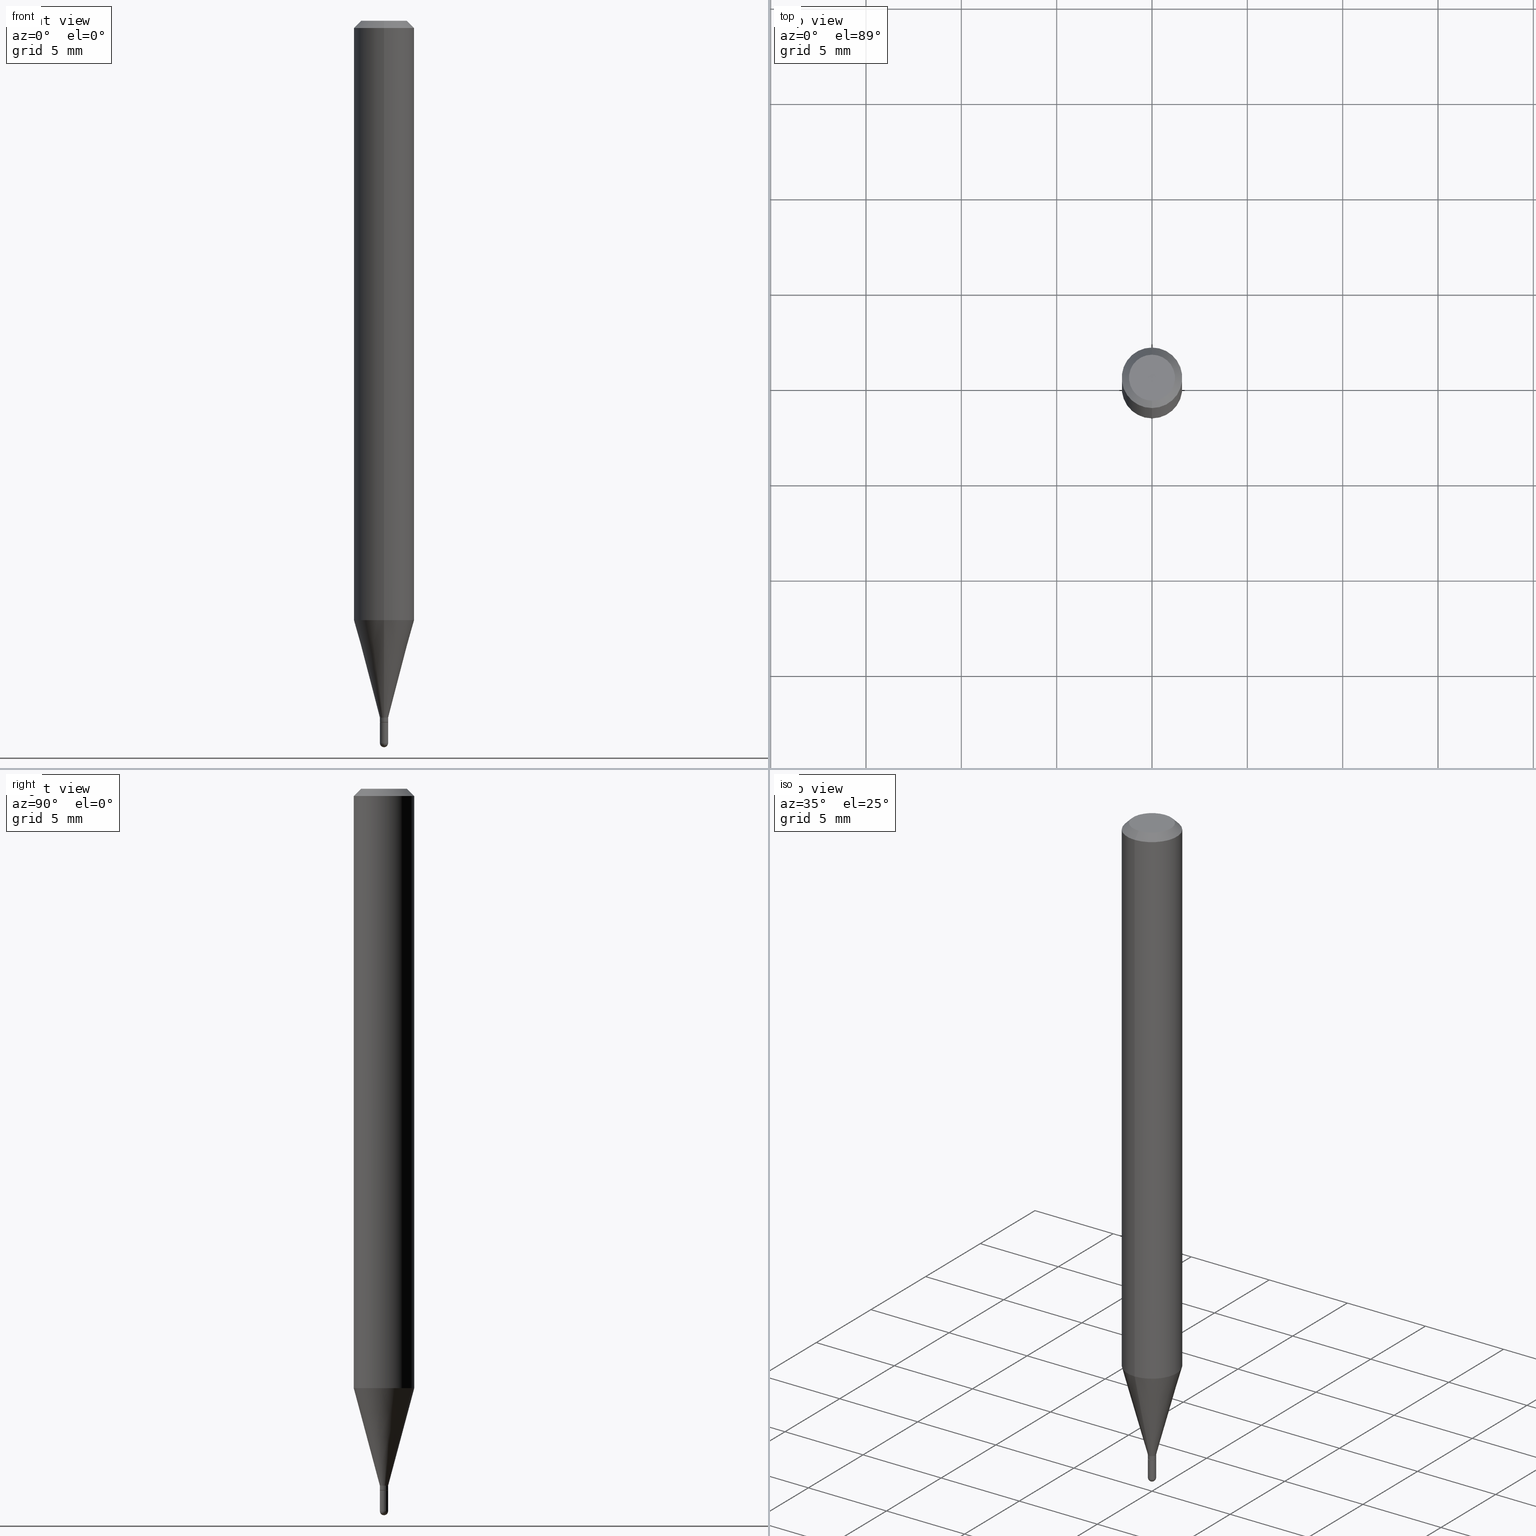
[diagram: canonical four-view strip — front | top / right | iso, engineering-drawing reading convention]
A machine part, canonical four-view strip (front | top / right | iso — engineering-drawing reading convention). The complete STEP part file that produces these views, byte-faithful:
ISO-10303-21;
HEADER;
FILE_DESCRIPTION (( 'STEP AP203' ),
    '1' );
FILE_NAME ('03152.STEP',
    '2024-03-08T18:22:03',
    ( '' ),
    ( '' ),
    'SwSTEP 2.0',
    'SolidWorks 2023',
    '' );
FILE_SCHEMA (( 'CONFIG_CONTROL_DESIGN' ));
ENDSEC;

DATA;
#1 = FACE_OUTER_BOUND ( 'NONE', #250, .T. ) ;
#2 = CALENDAR_DATE ( 2024, 8, 3 ) ;
#3 = EDGE_CURVE ( 'NONE', #295, #262, #270, .T. ) ;
#4 = VECTOR ( 'NONE', #246, 39.37007874015748854 ) ;
#5 = DIRECTION ( 'NONE',  ( 1.000000000000000000, -6.982962677686273021E-15, 0.000000000000000000 ) ) ;
#6 = DATE_TIME_ROLE ( 'classification_date' ) ;
#7 = CALENDAR_DATE ( 2024, 8, 3 ) ;
#8 = ADVANCED_FACE ( 'NONE', ( #176 ), #100, .T. ) ;
#9 = CYLINDRICAL_SURFACE ( 'NONE', #442, 0.008499999999999924283 ) ;
#10 = ORIENTED_EDGE ( 'NONE', *, *, #346, .F. ) ;
#11 = AXIS2_PLACEMENT_3D ( 'NONE', #419, #53, #213 ) ;
#12 = AXIS2_PLACEMENT_3D ( 'NONE', #311, #116, #273 ) ;
#13 = CARTESIAN_POINT ( 'NONE',  ( -4.364351673553912750E-16, -0.06250000000000005551, -0.01499999999999954321 ) ) ;
#14 = EDGE_LOOP ( 'NONE', ( #289, #260, #386, #105 ) ) ;
#15 = ORIENTED_EDGE ( 'NONE', *, *, #340, .F. ) ;
#16 = EDGE_CURVE ( 'NONE', #423, #259, #155, .T. ) ;
#17 = DIRECTION ( 'NONE',  ( 1.000000000000000000, -6.982962677686274599E-15, 0.000000000000000000 ) ) ;
#18 = ORIENTED_EDGE ( 'NONE', *, *, #491, .T. ) ;
#19 = DIRECTION ( 'NONE',  ( -2.445462151224155023E-29, 3.491490869126048320E-15, 1.000000000000000000 ) ) ;
#20 = LINE ( 'NONE', #383, #4 ) ;
#21 = CARTESIAN_POINT ( 'NONE',  ( 3.316907271900976096E-16, 0.04749999999999999362, -4.610126859532487999E-17 ) ) ;
#22 = VERTEX_POINT ( 'NONE', #190 ) ;
#23 = ORIENTED_EDGE ( 'NONE', *, *, #346, .T. ) ;
#24 = CIRCLE ( 'NONE', #148, 0.008499999999999924283 ) ;
#25 = CC_DESIGN_APPROVAL ( #75, ( #452 ) ) ;
#26 = ORIENTED_EDGE ( 'NONE', *, *, #310, .T. ) ;
#27 = DIRECTION ( 'NONE',  ( 1.000000000000000000, -6.982962677686265922E-15, 4.876176775795935232E-29 ) ) ;
#28 = CC_DESIGN_PERSON_AND_ORGANIZATION_ASSIGNMENT ( #200, #276, ( #219 ) ) ;
#29 = FACE_OUTER_BOUND ( 'NONE', #292, .T. ) ;
#30 = ADVANCED_FACE ( 'NONE', ( #356 ), #60, .T. ) ;
#31 = DIRECTION ( 'NONE',  ( -6.982962677686265922E-15, -1.000000000000000000, 0.000000000000000000 ) ) ;
#32 = CIRCLE ( 'NONE', #198, 0.008500000000000002345 ) ;
#33 = CARTESIAN_POINT ( 'NONE',  ( 0.000000000000000000, 0.000000000000000000, 0.000000000000000000 ) ) ;
#34 = AXIS2_PLACEMENT_3D ( 'NONE', #328, #438, #365 ) ;
#35 = PRODUCT_DEFINITION_SHAPE ( 'NONE', 'NONE',  #301 ) ;
#36 = PERSON_AND_ORGANIZATION_ROLE ( 'creator' ) ;
#37 = VECTOR ( 'NONE', #159, 39.37007874015748143 ) ;
#38 = AXIS2_PLACEMENT_3D ( 'NONE', #231, #192, #234 ) ;
#39 = CARTESIAN_POINT ( 'NONE',  ( 5.861977570024342171E-17, 0.007999999999994941713, -1.449000000000000066 ) ) ;
#40 = EDGE_CURVE ( 'NONE', #104, #280, #371, .T. ) ;
#41 = PERSON_AND_ORGANIZATION_ROLE ( 'creator' ) ;
#42 = DIRECTION ( 'NONE',  ( -2.445462151224154742E-29, 3.491490869126048320E-15, 1.000000000000000000 ) ) ;
#43 = APPROVAL_ROLE ( '' ) ;
#44 = CARTESIAN_POINT ( 'NONE',  ( 3.840629472727447874E-16, 0.04749999999999999362, 7.364327909283752044E-17 ) ) ;
#45 = ORIENTED_EDGE ( 'NONE', *, *, #454, .T. ) ;
#46 = DESIGN_CONTEXT ( 'detailed design', #272, 'design' ) ;
#47 = CARTESIAN_POINT ( 'NONE',  ( -0.008500000000000000611, -5.072954305894525412E-15, -1.449000000000000066 ) ) ;
#48 = ORIENTED_EDGE ( 'NONE', *, *, #310, .F. ) ;
#49 = LOCAL_TIME ( 13, 22, 3.000000000000000000, #83 ) ;
#50 = FACE_OUTER_BOUND ( 'NONE', #457, .T. ) ;
#51 = DIRECTION ( 'NONE',  ( 2.445462151224154462E-29, -3.491490869126048320E-15, -1.000000000000000000 ) ) ;
#52 = ORIENTED_EDGE ( 'NONE', *, *, #3, .F. ) ;
#53 = DIRECTION ( 'NONE',  ( -2.445462151224154742E-29, 3.491490869126048320E-15, 1.000000000000000000 ) ) ;
#54 = EDGE_CURVE ( 'NONE', #259, #466, #284, .T. ) ;
#55 = ORIENTED_EDGE ( 'NONE', *, *, #472, .F. ) ;
#56 = ADVANCED_FACE ( 'NONE', ( #127 ), #85, .T. ) ;
#57 = DIRECTION ( 'NONE',  ( -6.982962677686266711E-15, -1.000000000000000000, 0.000000000000000000 ) ) ;
#58 = CC_DESIGN_PERSON_AND_ORGANIZATION_ASSIGNMENT ( #367, #323, ( #452 ) ) ;
#59 = EDGE_LOOP ( 'NONE', ( #332, #345, #139, #482 ) ) ;
#60 = CONICAL_SURFACE ( 'NONE', #277, 0.06250000000000000000, 0.7853981633974483900 ) ;
#61 = ADVANCED_FACE ( 'NONE', ( #1 ), #327, .T. ) ;
#62 = PLANE ( 'NONE',  #193 ) ;
#63 = ORIENTED_EDGE ( 'NONE', *, *, #506, .F. ) ;
#64 = DIRECTION ( 'NONE',  ( -6.982962677686265922E-15, -1.000000000000000000, 3.483106191921935554E-15 ) ) ;
#65 = ADVANCED_FACE ( 'NONE', ( #50 ), #206, .T. ) ;
#66 = LENGTH_MEASURE_WITH_UNIT ( LENGTH_MEASURE( 0.02539999999999999897 ), #189 );
#67 = CARTESIAN_POINT ( 'NONE',  ( 0.008500000000000000611, -5.118511642744051990E-15, -1.449000000000000066 ) ) ;
#68 = AXIS2_PLACEMENT_3D ( 'NONE', #411, #203, #375 ) ;
#69 = CIRCLE ( 'NONE', #34, 0.008499999999999924283 ) ;
#70 = DIRECTION ( 'NONE',  ( -2.445462151224154742E-29, 3.491490869126048320E-15, 1.000000000000000000 ) ) ;
#71 = UNCERTAINTY_MEASURE_WITH_UNIT (LENGTH_MEASURE( 1.000000000000000082E-05 ), #394, 'distance_accuracy_value', 'NONE');
#72 = ORIENTED_EDGE ( 'NONE', *, *, #364, .F. ) ;
#73 = ADVANCED_FACE ( 'NONE', ( #498 ), #424, .T. ) ;
#74 = DIRECTION ( 'NONE',  ( -2.445462151224154742E-29, 3.491490869126048320E-15, 1.000000000000000000 ) ) ;
#75 = APPROVAL ( #481, 'UNSPECIFIED' ) ;
#76 = APPROVAL_DATE_TIME ( #512, #263 ) ;
#77 = ADVANCED_FACE ( 'NONE', ( #456 ), #389, .T. ) ;
#78 = PRODUCT_DEFINITION_FORMATION_WITH_SPECIFIED_SOURCE ( 'ANY', '', #219, .NOT_KNOWN. ) ;
#79 = PERSON ( 'UNSPECIFIED', 'UNSPECIFIED', 'UNSPECIFIED', ('UNSPECIFIED'), ('UNSPECIFIED'), ('UNSPECIFIED') ) ;
#80 = ADVANCED_FACE ( 'NONE', ( #183 ), #171, .T. ) ;
#81 = DIRECTION ( 'NONE',  ( -6.982962677686266711E-15, -1.000000000000000000, 0.000000000000000000 ) ) ;
#82 = APPROVAL ( #372, 'UNSPECIFIED' ) ;
#83 = COORDINATED_UNIVERSAL_TIME_OFFSET ( 5, 0, .BEHIND. ) ;
#84 = CARTESIAN_POINT ( 'NONE',  ( 3.519020035611559591E-29, -5.024255360672383389E-15, -1.439000000000000057 ) ) ;
#85 = CONICAL_SURFACE ( 'NONE', #441, 0.008000000000000000167, 0.7853981633974739252 ) ;
#86 = APPLICATION_PROTOCOL_DEFINITION ( 'international standard', 'config_control_design', 1994, #272 ) ;
#87 = ORIENTED_EDGE ( 'NONE', *, *, #121, .T. ) ;
#88 = CARTESIAN_POINT ( 'NONE',  ( -5.586370142145469855E-17, -0.008000000000005060355, -1.449000000000000066 ) ) ;
#89 = DIRECTION ( 'NONE',  ( -2.445462151224154742E-29, 3.491490869126048320E-15, 1.000000000000000000 ) ) ;
#90 = ORIENTED_EDGE ( 'NONE', *, *, #351, .F. ) ;
#91 = DIRECTION ( 'NONE',  ( 1.000000000000000000, -6.982962677686273021E-15, 0.000000000000000000 ) ) ;
#92 = CARTESIAN_POINT ( 'NONE',  ( 3.519020035611559591E-29, -5.024255360672383389E-15, -1.439000000000000057 ) ) ;
#93 = CARTESIAN_POINT ( 'NONE',  ( 3.668193226836173784E-31, -5.237236303688988910E-17, -0.01499999999999976179 ) ) ;
#94 = ORIENTED_EDGE ( 'NONE', *, *, #283, .F. ) ;
#95 = VERTEX_POINT ( 'NONE', #13 ) ;
#96 = VECTOR ( 'NONE', #19, 39.37007874015748143 ) ;
#97 = ADVANCED_FACE ( 'NONE', ( #296 ), #174, .F. ) ;
#98 = CIRCLE ( 'NONE', #377, 0.008499999999999924283 ) ;
#99 = CARTESIAN_POINT ( 'NONE',  ( 4.440892098500927901E-16, 0.06249999999999569095, -1.237469256391281691 ) ) ;
#100 = SPHERICAL_SURFACE ( 'NONE', #459, 0.008499999999999827138 ) ;
#101 = EDGE_LOOP ( 'NONE', ( #382, #15, #445, #45 ) ) ;
#102 = DIRECTION ( 'NONE',  ( 1.000000000000000000, -6.982962677686265922E-15, 4.876176775795935232E-29 ) ) ;
#103 = EDGE_LOOP ( 'NONE', ( #23, #492, #421, #314 ) ) ;
#104 = VERTEX_POINT ( 'NONE', #99 ) ;
#105 = ORIENTED_EDGE ( 'NONE', *, *, #429, .F. ) ;
#106 = AXIS2_PLACEMENT_3D ( 'NONE', #415, #339, #493 ) ;
#107 = AXIS2_PLACEMENT_3D ( 'NONE', #433, #74, #320 ) ;
#108 = CARTESIAN_POINT ( 'NONE',  ( 3.543484300162263247E-29, -5.059156459983718502E-15, -1.449000000000000066 ) ) ;
#109 = EDGE_LOOP ( 'NONE', ( #497, #178, #212, #384 ) ) ;
#110 = CARTESIAN_POINT ( 'NONE',  ( 3.647416724425131194E-29, -5.207544416884551827E-15, -1.491500000000000270 ) ) ;
#111 = ORIENTED_EDGE ( 'NONE', *, *, #366, .T. ) ;
#112 = EDGE_CURVE ( 'NONE', #488, #104, #243, .T. ) ;
#113 = DIRECTION ( 'NONE',  ( -2.445468806185136597E-29, 3.491481338843145583E-15, 1.000000000000000000 ) ) ;
#114 = EDGE_CURVE ( 'NONE', #466, #488, #20, .T. ) ;
#115 = AXIS2_PLACEMENT_3D ( 'NONE', #286, #42, #380 ) ;
#116 = DIRECTION ( 'NONE',  ( -1.000000000000000000, 6.982962677686265922E-15, -4.883557194083112340E-29 ) ) ;
#117 = FACE_OUTER_BOUND ( 'NONE', #59, .T. ) ;
#118 = CARTESIAN_POINT ( 'NONE',  ( 0.000000000000000000, 0.000000000000000000, 0.000000000000000000 ) ) ;
#119 = CARTESIAN_POINT ( 'NONE',  ( 3.668193226836173784E-31, -5.237236303688988910E-17, -0.01499999999999976179 ) ) ;
#120 = APPROVAL_DATE_TIME ( #402, #75 ) ;
#121 = EDGE_CURVE ( 'NONE', #428, #104, #378, .T. ) ;
#122 = CC_DESIGN_APPROVAL ( #263, ( #301 ) ) ;
#123 = ORIENTED_EDGE ( 'NONE', *, *, #283, .T. ) ;
#124 = DIRECTION ( 'NONE',  ( -2.445462151224155023E-29, 3.491490869126048320E-15, 1.000000000000000000 ) ) ;
#125 = VERTEX_POINT ( 'NONE', #39 ) ;
#126 = CYLINDRICAL_SURFACE ( 'NONE', #115, 0.06250000000000000000 ) ;
#127 = FACE_OUTER_BOUND ( 'NONE', #403, .T. ) ;
#128 = PERSON_AND_ORGANIZATION_ROLE ( 'design_supplier' ) ;
#129 = EDGE_LOOP ( 'NONE', ( #132, #154 ) ) ;
#130 = AXIS2_PLACEMENT_3D ( 'NONE', #281, #241, #102 ) ;
#131 = CIRCLE ( 'NONE', #172, 0.04749999999999999362 ) ;
#132 = ORIENTED_EDGE ( 'NONE', *, *, #340, .T. ) ;
#133 = APPLICATION_CONTEXT ( 'configuration controlled 3d designs of mechanical parts and assemblies' ) ;
#134 = CARTESIAN_POINT ( 'NONE',  ( 3.647416724425131194E-29, -5.207544416884551827E-15, -1.491500000000000270 ) ) ;
#135 = ORIENTED_EDGE ( 'NONE', *, *, #491, .F. ) ;
#136 = DIRECTION ( 'NONE',  ( -6.982962677686266711E-15, -1.000000000000000000, 0.000000000000000000 ) ) ;
#137 = LINE ( 'NONE', #143, #318 ) ;
#138 = CARTESIAN_POINT ( 'NONE',  ( 3.542251926048188314E-29, -5.057424523929081900E-15, -1.448500000000000121 ) ) ;
#139 = ORIENTED_EDGE ( 'NONE', *, *, #54, .T. ) ;
#140 = EDGE_CURVE ( 'NONE', #423, #428, #199, .T. ) ;
#141 = CIRCLE ( 'NONE', #254, 0.008500000000000002345 ) ;
#142 = VECTOR ( 'NONE', #504, 39.37007874015748143 ) ;
#143 = CARTESIAN_POINT ( 'NONE',  ( -4.364351673553916201E-16, -0.06250000000000000000, 2.182181793203780200E-16 ) ) ;
#144 = CARTESIAN_POINT ( 'NONE',  ( 3.542251926048188314E-29, -5.057424523929081900E-15, -1.448500000000000121 ) ) ;
#145 = ORIENTED_EDGE ( 'NONE', *, *, #149, .F. ) ;
#146 = ORIENTED_EDGE ( 'NONE', *, *, #502, .F. ) ;
#147 = MANIFOLD_SOLID_BREP ( 'Body-Move/Copy2[2]', #359 ) ;
#148 = AXIS2_PLACEMENT_3D ( 'NONE', #144, #261, #57 ) ;
#149 = EDGE_CURVE ( 'NONE', #22, #259, #290, .T. ) ;
#150 = LINE ( 'NONE', #194, #360 ) ;
#151 = CARTESIAN_POINT ( 'NONE',  ( 3.646689833079329078E-29, -5.208585366663827303E-15, -1.491500000000000270 ) ) ;
#152 = CARTESIAN_POINT ( 'NONE',  ( 5.935518276036870316E-17, 0.008499999999994942157, -1.449000000000000066 ) ) ;
#153 = EDGE_CURVE ( 'NONE', #448, #175, #395, .T. ) ;
#154 = ORIENTED_EDGE ( 'NONE', *, *, #467, .T. ) ;
#155 = CIRCLE ( 'NONE', #486, 0.008499999999999924283 ) ;
#156 = CIRCLE ( 'NONE', #307, 0.008000000000000000167 ) ;
#157 = DIRECTION ( 'NONE',  ( -2.445462151224154742E-29, 3.491490869126048320E-15, 1.000000000000000000 ) ) ;
#158 = COORDINATED_UNIVERSAL_TIME_OFFSET ( 5, 0, .BEHIND. ) ;
#159 = DIRECTION ( 'NONE',  ( -2.445462151224155023E-29, 3.491490869126048320E-15, 1.000000000000000000 ) ) ;
#160 = EDGE_CURVE ( 'NONE', #299, #448, #141, .T. ) ;
#161 = PERSON_AND_ORGANIZATION ( #79, #279 ) ;
#162 = ORIENTED_EDGE ( 'NONE', *, *, #160, .T. ) ;
#163 = CIRCLE ( 'NONE', #38, 0.06250000000000000000 ) ;
#164 = APPROVAL_DATE_TIME ( #330, #82 ) ;
#165 = DATE_TIME_ROLE ( 'creation_date' ) ;
#166 = DIRECTION ( 'NONE',  ( -4.851104656540964275E-15, -0.7071067811865500152, -0.7071067811865450192 ) ) ;
#167 = CARTESIAN_POINT ( 'NONE',  ( 6.039613253964316839E-17, 0.008499999999994900524, -1.439000000000000057 ) ) ;
#168 = DIRECTION ( 'NONE',  ( -2.445462151224154742E-29, 3.491490869126048320E-15, 1.000000000000000000 ) ) ;
#169 = CARTESIAN_POINT ( 'NONE',  ( -5.935518276029620192E-17, -0.008500000000005121514, -1.491500000000000270 ) ) ;
#170 = VERTEX_POINT ( 'NONE', #211 ) ;
#171 = CONICAL_SURFACE ( 'NONE', #236, 0.008499999999999924283, 0.2617993877991505181 ) ;
#172 = AXIS2_PLACEMENT_3D ( 'NONE', #184, #349, #465 ) ;
#173 = LOCAL_TIME ( 13, 22, 3.000000000000000000, #158 ) ;
#174 = PLANE ( 'NONE',  #264 ) ;
#175 = VERTEX_POINT ( 'NONE', #169 ) ;
#176 = FACE_OUTER_BOUND ( 'NONE', #336, .T. ) ;
#177 = VERTEX_POINT ( 'NONE', #507 ) ;
#178 = ORIENTED_EDGE ( 'NONE', *, *, #210, .T. ) ;
#179 = AXIS2_PLACEMENT_3D ( 'NONE', #92, #252, #257 ) ;
#180 = AXIS2_PLACEMENT_3D ( 'NONE', #469, #267, #228 ) ;
#181 = ORIENTED_EDGE ( 'NONE', *, *, #454, .F. ) ;
#182 = ORIENTED_EDGE ( 'NONE', *, *, #251, .T. ) ;
#183 = FACE_OUTER_BOUND ( 'NONE', #109, .T. ) ;
#184 = CARTESIAN_POINT ( 'NONE',  ( -5.856615183737140783E-45, 8.361739897616952739E-31, 2.394890953763248009E-16 ) ) ;
#185 = CIRCLE ( 'NONE', #425, 0.008000000000000000167 ) ;
#186 = LOCAL_TIME ( 13, 22, 3.000000000000000000, #196 ) ;
#187 = APPLICATION_PROTOCOL_DEFINITION ( 'international standard', 'config_control_design', 1994, #133 ) ;
#188 = DIRECTION ( 'NONE',  ( -6.982962677686266711E-15, -1.000000000000000000, 0.000000000000000000 ) ) ;
#189 =( LENGTH_UNIT ( ) NAMED_UNIT ( * ) SI_UNIT ( $, .METRE. ) );
#190 = CARTESIAN_POINT ( 'NONE',  ( -5.586370142145469855E-17, -0.008000000000005060355, -1.449000000000000066 ) ) ;
#191 = CYLINDRICAL_SURFACE ( 'NONE', #218, 0.06250000000000000000 ) ;
#192 = DIRECTION ( 'NONE',  ( -2.445462151224154742E-29, 3.491490869126048320E-15, 1.000000000000000000 ) ) ;
#193 = AXIS2_PLACEMENT_3D ( 'NONE', #21, #51, #381 ) ;
#194 = CARTESIAN_POINT ( 'NONE',  ( 4.364351673553919652E-16, 0.06249999999999995143, -0.01499999999999997863 ) ) ;
#195 = DIRECTION ( 'NONE',  ( -2.445468806185136877E-29, 3.491481338843145188E-15, 1.000000000000000000 ) ) ;
#196 = COORDINATED_UNIVERSAL_TIME_OFFSET ( 5, 0, .BEHIND. ) ;
#197 = SECURITY_CLASSIFICATION_LEVEL ( 'unclassified' ) ;
#198 = AXIS2_PLACEMENT_3D ( 'NONE', #468, #271, #5 ) ;
#199 = LINE ( 'NONE', #369, #96 ) ;
#200 = PERSON_AND_ORGANIZATION ( #79, #279 ) ;
#201 = SHAPE_DEFINITION_REPRESENTATION ( #35, #426 ) ;
#202 = EDGE_LOOP ( 'NONE', ( #390, #182, #293, #181 ) ) ;
#203 = DIRECTION ( 'NONE',  ( -2.445468806185136597E-29, 3.491481338843145583E-15, 1.000000000000000000 ) ) ;
#204 = DIRECTION ( 'NONE',  ( -2.445468806185136597E-29, 3.491481338843145583E-15, 1.000000000000000000 ) ) ;
#205 = ORIENTED_EDGE ( 'NONE', *, *, #374, .F. ) ;
#206 = CONICAL_SURFACE ( 'NONE', #179, 0.008499999999999924283, 0.2617993877991505181 ) ;
#207 = VERTEX_POINT ( 'NONE', #44 ) ;
#208 = AXIS2_PLACEMENT_3D ( 'NONE', #118, #440, #363 ) ;
#209 = APPROVAL_PERSON_ORGANIZATION ( #483, #75, #43 ) ;
#210 = EDGE_CURVE ( 'NONE', #428, #466, #98, .T. ) ;
#211 = CARTESIAN_POINT ( 'NONE',  ( -3.773273898774340269E-16, -0.04749999999999999362, 4.053349116598120813E-16 ) ) ;
#212 = ORIENTED_EDGE ( 'NONE', *, *, #114, .T. ) ;
#213 = DIRECTION ( 'NONE',  ( -6.982962677686265922E-15, -1.000000000000000000, 4.370956789862821150E-15 ) ) ;
#214 = VERTEX_POINT ( 'NONE', #474 ) ;
#215 = ORIENTED_EDGE ( 'NONE', *, *, #437, .T. ) ;
#216 = DIRECTION ( 'NONE',  ( -6.982962677686266711E-15, -1.000000000000000000, 3.491490869126049109E-15 ) ) ;
#217 = ORIENTED_EDGE ( 'NONE', *, *, #437, .F. ) ;
#218 = AXIS2_PLACEMENT_3D ( 'NONE', #33, #70, #352 ) ;
#219 = PRODUCT ( '03152', '03152', '', ( #479 ) ) ;
#220 = ORIENTED_EDGE ( 'NONE', *, *, #153, .T. ) ;
#221 = ORIENTED_EDGE ( 'NONE', *, *, #114, .F. ) ;
#222 = DIRECTION ( 'NONE',  ( 4.937700262164548042E-15, 0.7071067811865451302, -0.7071067811865499042 ) ) ;
#223 = SPHERICAL_SURFACE ( 'NONE', #300, 0.008499999999999827138 ) ;
#224 = DIRECTION ( 'NONE',  ( 1.000000000000000000, -6.982962677686265922E-15, 4.883557194083112901E-29 ) ) ;
#225 = DIRECTION ( 'NONE',  ( -1.000000000000000000, 6.982962677686265922E-15, -4.876176775795935793E-29 ) ) ;
#226 = AXIS2_PLACEMENT_3D ( 'NONE', #110, #113, #434 ) ;
#227 = CARTESIAN_POINT ( 'NONE',  ( 6.039613253964436401E-17, 0.008499999999994706235, -1.491500000000000270 ) ) ;
#228 = DIRECTION ( 'NONE',  ( 7.105427357601000281E-15, 1.000000000000000000, 0.000000000000000000 ) ) ;
#229 = DIRECTION ( 'NONE',  ( -2.445462151224154742E-29, 3.491490869126048320E-15, 1.000000000000000000 ) ) ;
#230 =( NAMED_UNIT ( * ) SI_UNIT ( $, .STERADIAN. ) SOLID_ANGLE_UNIT ( ) );
#231 = CARTESIAN_POINT ( 'NONE',  ( 3.026184229808377887E-29, -4.320612609514359217E-15, -1.237469256391281247 ) ) ;
#232 = LINE ( 'NONE', #353, #436 ) ;
#233 = ORIENTED_EDGE ( 'NONE', *, *, #409, .F. ) ;
#234 = DIRECTION ( 'NONE',  ( -6.982962677686265922E-15, -1.000000000000000000, 4.370956789862821150E-15 ) ) ;
#235 = CARTESIAN_POINT ( 'NONE',  ( -4.287811248607203282E-16, -0.06250000000000005551, -0.01499999999999954321 ) ) ;
#236 = AXIS2_PLACEMENT_3D ( 'NONE', #347, #376, #136 ) ;
#237 = DIRECTION ( 'NONE',  ( 6.982962677686265922E-15, 1.000000000000000000, -3.483106191921935554E-15 ) ) ;
#238 = CIRCLE ( 'NONE', #510, 0.008500000000000000611 ) ;
#239 = ORIENTED_EDGE ( 'NONE', *, *, #149, .T. ) ;
#240 = PRODUCT_RELATED_PRODUCT_CATEGORY ( 'detail', '', ( #219 ) ) ;
#241 = DIRECTION ( 'NONE',  ( -2.445468806185136597E-29, 3.491481338843145583E-15, 1.000000000000000000 ) ) ;
#242 = CALENDAR_DATE ( 2024, 8, 3 ) ;
#243 = CIRCLE ( 'NONE', #11, 0.06250000000000000000 ) ;
#244 =( GEOMETRIC_REPRESENTATION_CONTEXT ( 3 ) GLOBAL_UNCERTAINTY_ASSIGNED_CONTEXT ( ( #71 ) ) GLOBAL_UNIT_ASSIGNED_CONTEXT ( ( #394, #306, #230 ) ) REPRESENTATION_CONTEXT ( 'NONE', 'WORKASPACE' ) );
#245 = DIRECTION ( 'NONE',  ( -6.982962677686266711E-15, -1.000000000000000000, 0.000000000000000000 ) ) ;
#246 = DIRECTION ( 'NONE',  ( -1.807323732225331717E-15, -0.2588190451025184080, 0.9659258262890689783 ) ) ;
#247 = APPROVAL_STATUS ( 'not_yet_approved' ) ;
#248 = CARTESIAN_POINT ( 'NONE',  ( 3.543474657123800381E-29, -5.059170269363644523E-15, -1.449000000000000066 ) ) ;
#249 = ORIENTED_EDGE ( 'NONE', *, *, #112, .T. ) ;
#250 = EDGE_LOOP ( 'NONE', ( #162, #501, #52, #72, #18 ) ) ;
#251 = EDGE_CURVE ( 'NONE', #104, #488, #163, .T. ) ;
#252 = DIRECTION ( 'NONE',  ( -2.445462151224154742E-29, 3.491490869126048320E-15, 1.000000000000000000 ) ) ;
#253 = ORIENTED_EDGE ( 'NONE', *, *, #305, .T. ) ;
#254 = AXIS2_PLACEMENT_3D ( 'NONE', #134, #447, #91 ) ;
#255 = ADVANCED_FACE ( 'NONE', ( #358 ), #126, .T. ) ;
#256 = CC_DESIGN_PERSON_AND_ORGANIZATION_ASSIGNMENT ( #407, #41, ( #301 ) ) ;
#257 = DIRECTION ( 'NONE',  ( -6.982962677686266711E-15, -1.000000000000000000, 0.000000000000000000 ) ) ;
#258 = CARTESIAN_POINT ( 'NONE',  ( -5.935518276029752079E-17, -0.008500000000005010492, -1.448500000000000121 ) ) ;
#259 = VERTEX_POINT ( 'NONE', #258 ) ;
#260 = ORIENTED_EDGE ( 'NONE', *, *, #331, .T. ) ;
#261 = DIRECTION ( 'NONE',  ( -2.445462151224154742E-29, 3.491490869126048320E-15, 1.000000000000000000 ) ) ;
#262 = VERTEX_POINT ( 'NONE', #47 ) ;
#263 = APPROVAL ( #247, 'UNSPECIFIED' ) ;
#264 = AXIS2_PLACEMENT_3D ( 'NONE', #337, #490, #450 ) ;
#265 = AXIS2_PLACEMENT_3D ( 'NONE', #316, #505, #64 ) ;
#266 = DIRECTION ( 'NONE',  ( -6.982962677686265922E-15, -1.000000000000000000, 3.483106191921935554E-15 ) ) ;
#267 = DIRECTION ( 'NONE',  ( 1.000000000000000000, -7.105427357601001070E-15, 4.926315508542082329E-29 ) ) ;
#268 = CARTESIAN_POINT ( 'NONE',  ( 6.039613253964319304E-17, 0.008499999999994839808, -1.448500000000000121 ) ) ;
#269 = EDGE_LOOP ( 'NONE', ( #48, #90 ) ) ;
#270 = CIRCLE ( 'NONE', #385, 0.008500000000000000611 ) ;
#271 = DIRECTION ( 'NONE',  ( -2.445468806185136597E-29, 3.491481338843145583E-15, 1.000000000000000000 ) ) ;
#272 = APPLICATION_CONTEXT ( 'configuration controlled 3d designs of mechanical parts and assemblies' ) ;
#273 = DIRECTION ( 'NONE',  ( -6.982962677686266711E-15, -1.000000000000000000, 0.000000000000000000 ) ) ;
#274 = ORIENTED_EDGE ( 'NONE', *, *, #160, .F. ) ;
#275 = CARTESIAN_POINT ( 'NONE',  ( 0.008500000000000002345, -5.935518276033327838E-17, 4.144750259426545879E-31 ) ) ;
#276 = PERSON_AND_ORGANIZATION_ROLE ( 'design_owner' ) ;
#277 = AXIS2_PLACEMENT_3D ( 'NONE', #119, #484, #237 ) ;
#278 = DIRECTION ( 'NONE',  ( -2.445462151224154742E-29, 3.491490869126048320E-15, 1.000000000000000000 ) ) ;
#279 = ORGANIZATION ( 'UNSPECIFIED', 'UNSPECIFIED', '' ) ;
#280 = VERTEX_POINT ( 'NONE', #312 ) ;
#281 = CARTESIAN_POINT ( 'NONE',  ( 0.000000000000000000, 0.000000000000000000, 0.000000000000000000 ) ) ;
#282 = CALENDAR_DATE ( 2024, 8, 3 ) ;
#283 = EDGE_CURVE ( 'NONE', #125, #423, #309, .T. ) ;
#284 = LINE ( 'NONE', #476, #37 ) ;
#285 = DATE_AND_TIME ( #7, #417 ) ;
#286 = CARTESIAN_POINT ( 'NONE',  ( 0.000000000000000000, 0.000000000000000000, 0.000000000000000000 ) ) ;
#287 = CLOSED_SHELL ( 'NONE', ( #61, #294, #487, #8, #77 ) ) ;
#288 = AXIS2_PLACEMENT_3D ( 'NONE', #93, #401, #324 ) ;
#289 = ORIENTED_EDGE ( 'NONE', *, *, #467, .F. ) ;
#290 = LINE ( 'NONE', #88, #298 ) ;
#291 = CARTESIAN_POINT ( 'NONE',  ( 0.000000000000000000, 0.000000000000000000, 0.000000000000000000 ) ) ;
#292 = EDGE_LOOP ( 'NONE', ( #26, #123, #10, #145 ) ) ;
#293 = ORIENTED_EDGE ( 'NONE', *, *, #374, .T. ) ;
#294 = ADVANCED_FACE ( 'NONE', ( #462 ), #223, .T. ) ;
#295 = VERTEX_POINT ( 'NONE', #67 ) ;
#296 = FACE_OUTER_BOUND ( 'NONE', #269, .T. ) ;
#297 = FACE_OUTER_BOUND ( 'NONE', #14, .T. ) ;
#298 = VECTOR ( 'NONE', #489, 39.37007874015748143 ) ;
#299 = VERTEX_POINT ( 'NONE', #227 ) ;
#300 = AXIS2_PLACEMENT_3D ( 'NONE', #151, #464, #430 ) ;
#301 = PRODUCT_DEFINITION ( 'UNKNOWN', '', #78, #46 ) ;
#302 = DIRECTION ( 'NONE',  ( 1.839019923739601893E-15, 0.2588190451025252359, 0.9659258262890670910 ) ) ;
#303 = DIRECTION ( 'NONE',  ( -2.445462151224155023E-29, 3.491490869126048320E-15, 1.000000000000000000 ) ) ;
#304 = EDGE_LOOP ( 'NONE', ( #249, #500, #233, #205 ) ) ;
#305 = EDGE_CURVE ( 'NONE', #175, #214, #32, .T. ) ;
#306 =( NAMED_UNIT ( * ) PLANE_ANGLE_UNIT ( ) SI_UNIT ( $, .RADIAN. ) );
#307 = AXIS2_PLACEMENT_3D ( 'NONE', #319, #355, #508 ) ;
#308 = APPROVAL_PERSON_ORGANIZATION ( #161, #82, #334 ) ;
#309 = LINE ( 'NONE', #315, #142 ) ;
#310 = EDGE_CURVE ( 'NONE', #22, #125, #156, .T. ) ;
#311 = CARTESIAN_POINT ( 'NONE',  ( 3.646689833079329078E-29, -5.208585366663827303E-15, -1.491500000000000270 ) ) ;
#312 = CARTESIAN_POINT ( 'NONE',  ( 4.440892098500930859E-16, 0.06249999999999995143, -0.01499999999999997863 ) ) ;
#313 = CARTESIAN_POINT ( 'NONE',  ( -4.364351673553615448E-16, -0.06250000000000432987, -1.237469256391281025 ) ) ;
#314 = ORIENTED_EDGE ( 'NONE', *, *, #54, .F. ) ;
#315 = CARTESIAN_POINT ( 'NONE',  ( 5.684341886084344084E-17, 0.007999999999994941713, -1.449000000000000066 ) ) ;
#316 = CARTESIAN_POINT ( 'NONE',  ( 3.668193226836173784E-31, -5.237236303688988910E-17, -0.01499999999999976179 ) ) ;
#317 = DIRECTION ( 'NONE',  ( -2.445462151224154742E-29, 3.491490869126048320E-15, 1.000000000000000000 ) ) ;
#318 = VECTOR ( 'NONE', #303, 39.37007874015748143 ) ;
#319 = CARTESIAN_POINT ( 'NONE',  ( 3.543474657123800381E-29, -5.059170269363644523E-15, -1.449000000000000066 ) ) ;
#320 = DIRECTION ( 'NONE',  ( -6.982962677686266711E-15, -1.000000000000000000, 0.000000000000000000 ) ) ;
#321 = PERSON_AND_ORGANIZATION ( #79, #279 ) ;
#322 = CARTESIAN_POINT ( 'NONE',  ( 3.543474657123800381E-29, -5.059170269363644523E-15, -1.449000000000000066 ) ) ;
#323 = PERSON_AND_ORGANIZATION_ROLE ( 'classification_officer' ) ;
#324 = DIRECTION ( 'NONE',  ( 6.982962677686265922E-15, 1.000000000000000000, -3.483106191921935554E-15 ) ) ;
#325 = EDGE_LOOP ( 'NONE', ( #63, #220, #253, #455, #217 ) ) ;
#326 = VECTOR ( 'NONE', #302, 39.37007874015748854 ) ;
#327 = CYLINDRICAL_SURFACE ( 'NONE', #130, 0.008500000000000002345 ) ;
#328 = CARTESIAN_POINT ( 'NONE',  ( 3.519020035611559591E-29, -5.024255360672383389E-15, -1.439000000000000057 ) ) ;
#329 = CIRCLE ( 'NONE', #335, 0.06250000000000000000 ) ;
#330 = DATE_AND_TIME ( #282, #173 ) ;
#331 = EDGE_CURVE ( 'NONE', #170, #95, #398, .T. ) ;
#332 = ORIENTED_EDGE ( 'NONE', *, *, #140, .F. ) ;
#333 = DATE_AND_TIME ( #408, #361 ) ;
#334 = APPROVAL_ROLE ( '' ) ;
#335 = AXIS2_PLACEMENT_3D ( 'NONE', #509, #157, #266 ) ;
#336 = EDGE_LOOP ( 'NONE', ( #146, #453, #446, #274 ) ) ;
#337 = CARTESIAN_POINT ( 'NONE',  ( 3.543474657123800381E-29, -5.059170269363644523E-15, -1.449000000000000066 ) ) ;
#338 = ORIENTED_EDGE ( 'NONE', *, *, #305, .F. ) ;
#339 = DIRECTION ( 'NONE',  ( -2.445462151224154742E-29, 3.491490869126048320E-15, 1.000000000000000000 ) ) ;
#340 = EDGE_CURVE ( 'NONE', #207, #170, #350, .T. ) ;
#341 = ORIENTED_EDGE ( 'NONE', *, *, #502, .T. ) ;
#342 = EDGE_LOOP ( 'NONE', ( #373, #215 ) ) ;
#343 = CIRCLE ( 'NONE', #12, 0.008499999999999827138 ) ;
#344 = CC_DESIGN_PERSON_AND_ORGANIZATION_ASSIGNMENT ( #485, #128, ( #78 ) ) ;
#345 = ORIENTED_EDGE ( 'NONE', *, *, #16, .T. ) ;
#346 = EDGE_CURVE ( 'NONE', #259, #423, #24, .T. ) ;
#347 = CARTESIAN_POINT ( 'NONE',  ( 3.519020035611559591E-29, -5.024255360672383389E-15, -1.439000000000000057 ) ) ;
#348 = ADVANCED_FACE ( 'NONE', ( #117 ), #9, .T. ) ;
#349 = DIRECTION ( 'NONE',  ( -2.445462151224154742E-29, 3.491490869126048320E-15, 1.000000000000000000 ) ) ;
#350 = CIRCLE ( 'NONE', #387, 0.04749999999999999362 ) ;
#351 = EDGE_CURVE ( 'NONE', #125, #22, #185, .T. ) ;
#352 = DIRECTION ( 'NONE',  ( -6.982962677686265922E-15, -1.000000000000000000, 3.491490869126048320E-15 ) ) ;
#353 = CARTESIAN_POINT ( 'NONE',  ( -0.008500000000000002345, 6.039613253960853246E-17, -4.181094826716670944E-31 ) ) ;
#354 = ADVANCED_FACE ( 'NONE', ( #414 ), #62, .F. ) ;
#355 = DIRECTION ( 'NONE',  ( -2.445462151224154742E-29, 3.491490869126048320E-15, 1.000000000000000000 ) ) ;
#356 = FACE_OUTER_BOUND ( 'NONE', #101, .T. ) ;
#357 = DIRECTION ( 'NONE',  ( -2.445468806185136597E-29, 3.491481338843145583E-15, 1.000000000000000000 ) ) ;
#358 = FACE_OUTER_BOUND ( 'NONE', #202, .T. ) ;
#359 = CLOSED_SHELL ( 'NONE', ( #73, #458, #388, #392, #65, #80, #255, #30, #354, #97, #56, #348 ) ) ;
#360 = VECTOR ( 'NONE', #222, 39.37007874015748143 ) ;
#361 = LOCAL_TIME ( 13, 22, 3.000000000000000000, #404 ) ;
#362 = DIMENSIONAL_EXPONENTS ( 1.000000000000000000, 0.000000000000000000, 0.000000000000000000, 0.000000000000000000, 0.000000000000000000, 0.000000000000000000, 0.000000000000000000 ) ;
#363 = DIRECTION ( 'NONE',  ( 1.000000000000000000, 0.000000000000000000, 0.000000000000000000 ) ) ;
#364 = EDGE_CURVE ( 'NONE', #214, #295, #478, .T. ) ;
#365 = DIRECTION ( 'NONE',  ( -6.982962677686266711E-15, -1.000000000000000000, 0.000000000000000000 ) ) ;
#366 = EDGE_CURVE ( 'NONE', #466, #428, #69, .T. ) ;
#367 = PERSON_AND_ORGANIZATION ( #79, #279 ) ;
#368 = CC_DESIGN_DATE_AND_TIME_ASSIGNMENT ( #285, #165, ( #301 ) ) ;
#369 = CARTESIAN_POINT ( 'NONE',  ( 6.039613253960797780E-17, 0.008499999999999924283, -2.967767238757115163E-17 ) ) ;
#370 = APPROVAL_ROLE ( '' ) ;
#371 = LINE ( 'NONE', #511, #435 ) ;
#372 = APPROVAL_STATUS ( 'not_yet_approved' ) ;
#373 = ORIENTED_EDGE ( 'NONE', *, *, #3, .T. ) ;
#374 = EDGE_CURVE ( 'NONE', #488, #95, #137, .T. ) ;
#375 = DIRECTION ( 'NONE',  ( 1.000000000000000000, -6.982962677686273021E-15, 0.000000000000000000 ) ) ;
#376 = DIRECTION ( 'NONE',  ( -2.445462151224154742E-29, 3.491490869126048320E-15, 1.000000000000000000 ) ) ;
#377 = AXIS2_PLACEMENT_3D ( 'NONE', #84, #317, #245 ) ;
#378 = LINE ( 'NONE', #167, #326 ) ;
#379 = DIRECTION ( 'NONE',  ( -2.445468806185136597E-29, 3.491481338843145583E-15, 1.000000000000000000 ) ) ;
#380 = DIRECTION ( 'NONE',  ( -6.982962677686265922E-15, -1.000000000000000000, 3.491490869126048320E-15 ) ) ;
#381 = DIRECTION ( 'NONE',  ( 6.982962677686265922E-15, 1.000000000000000000, -3.491490869126048320E-15 ) ) ;
#382 = ORIENTED_EDGE ( 'NONE', *, *, #331, .F. ) ;
#383 = CARTESIAN_POINT ( 'NONE',  ( -5.935518276029754545E-17, -0.008500000000004949777, -1.439000000000000057 ) ) ;
#384 = ORIENTED_EDGE ( 'NONE', *, *, #251, .F. ) ;
#385 = AXIS2_PLACEMENT_3D ( 'NONE', #416, #379, #17 ) ;
#386 = ORIENTED_EDGE ( 'NONE', *, *, #409, .T. ) ;
#387 = AXIS2_PLACEMENT_3D ( 'NONE', #495, #477, #216 ) ;
#388 = ADVANCED_FACE ( 'NONE', ( #297 ), #451, .T. ) ;
#389 = CYLINDRICAL_SURFACE ( 'NONE', #470, 0.008500000000000002345 ) ;
#390 = ORIENTED_EDGE ( 'NONE', *, *, #40, .F. ) ;
#391 = CARTESIAN_POINT ( 'NONE',  ( -0.008500000000000002345, -5.072954305894525412E-15, -1.491500000000000270 ) ) ;
#392 = ADVANCED_FACE ( 'NONE', ( #422 ), #191, .T. ) ;
#393 = CC_DESIGN_PERSON_AND_ORGANIZATION_ASSIGNMENT ( #321, #36, ( #78 ) ) ;
#394 =( CONVERSION_BASED_UNIT ( 'INCH', #66 ) LENGTH_UNIT ( ) NAMED_UNIT ( #362 ) );
#395 = CIRCLE ( 'NONE', #68, 0.008500000000000002345 ) ;
#396 = AXIS2_PLACEMENT_3D ( 'NONE', #152, #463, #225 ) ;
#397 = DIRECTION ( 'NONE',  ( -2.445468806185136877E-29, 3.491481338843145188E-15, 1.000000000000000000 ) ) ;
#398 = LINE ( 'NONE', #235, #496 ) ;
#399 = CONICAL_SURFACE ( 'NONE', #107, 0.008000000000000000167, 0.7853981633974739252 ) ;
#400 = CC_DESIGN_APPROVAL ( #82, ( #78 ) ) ;
#401 = DIRECTION ( 'NONE',  ( 2.445462151224154742E-29, -3.491490869126048320E-15, -1.000000000000000000 ) ) ;
#402 = DATE_AND_TIME ( #2, #186 ) ;
#403 = EDGE_LOOP ( 'NONE', ( #94, #418, #239, #494 ) ) ;
#404 = COORDINATED_UNIVERSAL_TIME_OFFSET ( 5, 0, .BEHIND. ) ;
#405 = CIRCLE ( 'NONE', #180, 0.008499999999999827138 ) ;
#406 = CC_DESIGN_SECURITY_CLASSIFICATION ( #452, ( #78 ) ) ;
#407 = PERSON_AND_ORGANIZATION ( #79, #279 ) ;
#408 = CALENDAR_DATE ( 2024, 8, 3 ) ;
#409 = EDGE_CURVE ( 'NONE', #95, #280, #461, .T. ) ;
#410 = ORIENTED_EDGE ( 'NONE', *, *, #112, .F. ) ;
#411 = CARTESIAN_POINT ( 'NONE',  ( 3.647416724425131194E-29, -5.207544416884551827E-15, -1.491500000000000270 ) ) ;
#412 = CARTESIAN_POINT ( 'NONE',  ( 0.000000000000000000, 0.000000000000000000, 0.000000000000000000 ) ) ;
#413 = DIRECTION ( 'NONE',  ( -6.982962677686266711E-15, -1.000000000000000000, 3.491490869126049109E-15 ) ) ;
#414 = FACE_OUTER_BOUND ( 'NONE', #129, .T. ) ;
#415 = CARTESIAN_POINT ( 'NONE',  ( 0.000000000000000000, 0.000000000000000000, 0.000000000000000000 ) ) ;
#416 = CARTESIAN_POINT ( 'NONE',  ( 3.543484300162263247E-29, -5.059156459983718502E-15, -1.449000000000000066 ) ) ;
#417 = LOCAL_TIME ( 13, 22, 3.000000000000000000, #439 ) ;
#418 = ORIENTED_EDGE ( 'NONE', *, *, #351, .T. ) ;
#419 = CARTESIAN_POINT ( 'NONE',  ( 3.026184229808377887E-29, -4.320612609514359217E-15, -1.237469256391281247 ) ) ;
#420 = CARTESIAN_POINT ( 'NONE',  ( 3.646689833079329078E-29, -5.208585366663827303E-15, -1.491500000000000270 ) ) ;
#421 = ORIENTED_EDGE ( 'NONE', *, *, #366, .F. ) ;
#422 = FACE_OUTER_BOUND ( 'NONE', #304, .T. ) ;
#423 = VERTEX_POINT ( 'NONE', #268 ) ;
#424 = CYLINDRICAL_SURFACE ( 'NONE', #106, 0.008499999999999924283 ) ;
#425 = AXIS2_PLACEMENT_3D ( 'NONE', #248, #168, #499 ) ;
#426 = ADVANCED_BREP_SHAPE_REPRESENTATION ( '03152', ( #475, #147, #208 ), #244 ) ;
#427 = PLANE ( 'NONE',  #396 ) ;
#428 = VERTEX_POINT ( 'NONE', #460 ) ;
#429 = EDGE_CURVE ( 'NONE', #207, #280, #150, .T. ) ;
#430 = DIRECTION ( 'NONE',  ( -6.982962677686265922E-15, -1.000000000000000000, 0.000000000000000000 ) ) ;
#431 = DIRECTION ( 'NONE',  ( 1.000000000000000000, -6.982962677686274599E-15, 0.000000000000000000 ) ) ;
#432 = VECTOR ( 'NONE', #195, 39.37007874015748143 ) ;
#433 = CARTESIAN_POINT ( 'NONE',  ( 3.543474657123800381E-29, -5.059170269363644523E-15, -1.449000000000000066 ) ) ;
#434 = DIRECTION ( 'NONE',  ( 1.000000000000000000, -6.982962677686273021E-15, 0.000000000000000000 ) ) ;
#435 = VECTOR ( 'NONE', #124, 39.37007874015748143 ) ;
#436 = VECTOR ( 'NONE', #397, 39.37007874015748143 ) ;
#437 = EDGE_CURVE ( 'NONE', #262, #295, #238, .T. ) ;
#438 = DIRECTION ( 'NONE',  ( -2.445462151224154742E-29, 3.491490869126048320E-15, 1.000000000000000000 ) ) ;
#439 = COORDINATED_UNIVERSAL_TIME_OFFSET ( 5, 0, .BEHIND. ) ;
#440 = DIRECTION ( 'NONE',  ( 0.000000000000000000, 0.000000000000000000, 1.000000000000000000 ) ) ;
#441 = AXIS2_PLACEMENT_3D ( 'NONE', #322, #278, #81 ) ;
#442 = AXIS2_PLACEMENT_3D ( 'NONE', #291, #89, #413 ) ;
#443 = PERSON_AND_ORGANIZATION ( #79, #279 ) ;
#444 = CC_DESIGN_DATE_AND_TIME_ASSIGNMENT ( #333, #6, ( #452 ) ) ;
#445 = ORIENTED_EDGE ( 'NONE', *, *, #429, .T. ) ;
#446 = ORIENTED_EDGE ( 'NONE', *, *, #153, .F. ) ;
#447 = DIRECTION ( 'NONE',  ( -2.445468806185136597E-29, 3.491481338843145583E-15, 1.000000000000000000 ) ) ;
#448 = VERTEX_POINT ( 'NONE', #391 ) ;
#449 = EDGE_LOOP ( 'NONE', ( #55, #341, #135, #338 ) ) ;
#450 = DIRECTION ( 'NONE',  ( -6.982962677686265922E-15, -1.000000000000000000, 3.491490869126048320E-15 ) ) ;
#451 = CONICAL_SURFACE ( 'NONE', #288, 0.06250000000000000000, 0.7853981633974483900 ) ;
#452 = SECURITY_CLASSIFICATION ( '', '', #197 ) ;
#453 = ORIENTED_EDGE ( 'NONE', *, *, #472, .T. ) ;
#454 = EDGE_CURVE ( 'NONE', #280, #95, #329, .T. ) ;
#455 = ORIENTED_EDGE ( 'NONE', *, *, #364, .T. ) ;
#456 = FACE_OUTER_BOUND ( 'NONE', #325, .T. ) ;
#457 = EDGE_LOOP ( 'NONE', ( #111, #87, #410, #221 ) ) ;
#458 = ADVANCED_FACE ( 'NONE', ( #29 ), #399, .T. ) ;
#459 = AXIS2_PLACEMENT_3D ( 'NONE', #420, #224, #31 ) ;
#460 = CARTESIAN_POINT ( 'NONE',  ( 2.522426711948681826E-16, 0.008499999999994900524, -1.439000000000000057 ) ) ;
#461 = CIRCLE ( 'NONE', #265, 0.06250000000000000000 ) ;
#462 = FACE_OUTER_BOUND ( 'NONE', #449, .T. ) ;
#463 = DIRECTION ( 'NONE',  ( 2.438088387897960049E-29, -3.491481338843145188E-15, -1.000000000000000000 ) ) ;
#464 = DIRECTION ( 'NONE',  ( 1.000000000000000000, -6.982962677686265922E-15, 4.883557194083112901E-29 ) ) ;
#465 = DIRECTION ( 'NONE',  ( -6.982962677686266711E-15, -1.000000000000000000, 3.491490869126049109E-15 ) ) ;
#466 = VERTEX_POINT ( 'NONE', #473 ) ;
#467 = EDGE_CURVE ( 'NONE', #170, #207, #131, .T. ) ;
#468 = CARTESIAN_POINT ( 'NONE',  ( 3.647416724425131194E-29, -5.207544416884551827E-15, -1.491500000000000270 ) ) ;
#469 = CARTESIAN_POINT ( 'NONE',  ( 3.646689833079329078E-29, -5.208585366663827303E-15, -1.491500000000000270 ) ) ;
#470 = AXIS2_PLACEMENT_3D ( 'NONE', #412, #204, #27 ) ;
#471 = CIRCLE ( 'NONE', #226, 0.008500000000000002345 ) ;
#472 = EDGE_CURVE ( 'NONE', #177, #175, #343, .T. ) ;
#473 = CARTESIAN_POINT ( 'NONE',  ( -5.935518276029754545E-17, -0.008500000000004949777, -1.439000000000000057 ) ) ;
#474 = CARTESIAN_POINT ( 'NONE',  ( 0.008500000000000002345, -5.192705621194468652E-15, -1.491500000000000270 ) ) ;
#475 = MANIFOLD_SOLID_BREP ( 'Body-Move/Copy2[1]', #287 ) ;
#476 = CARTESIAN_POINT ( 'NONE',  ( -5.935518276033273604E-17, -0.008499999999999924283, 2.967767238757115163E-17 ) ) ;
#477 = DIRECTION ( 'NONE',  ( -2.445462151224154742E-29, 3.491490869126048320E-15, 1.000000000000000000 ) ) ;
#478 = LINE ( 'NONE', #275, #432 ) ;
#479 = MECHANICAL_CONTEXT ( 'NONE', #133, 'mechanical' ) ;
#480 = APPROVAL_PERSON_ORGANIZATION ( #443, #263, #370 ) ;
#481 = APPROVAL_STATUS ( 'not_yet_approved' ) ;
#482 = ORIENTED_EDGE ( 'NONE', *, *, #210, .F. ) ;
#483 = PERSON_AND_ORGANIZATION ( #79, #279 ) ;
#484 = DIRECTION ( 'NONE',  ( 2.445462151224154742E-29, -3.491490869126048320E-15, -1.000000000000000000 ) ) ;
#485 = PERSON_AND_ORGANIZATION ( #79, #279 ) ;
#486 = AXIS2_PLACEMENT_3D ( 'NONE', #138, #229, #188 ) ;
#487 = ADVANCED_FACE ( 'NONE', ( #503 ), #427, .F. ) ;
#488 = VERTEX_POINT ( 'NONE', #313 ) ;
#489 = DIRECTION ( 'NONE',  ( -4.937700262164674260E-15, -0.7071067811865632269, 0.7071067811865319186 ) ) ;
#490 = DIRECTION ( 'NONE',  ( -2.445462151224154462E-29, 3.491490869126048320E-15, 1.000000000000000000 ) ) ;
#491 = EDGE_CURVE ( 'NONE', #214, #299, #471, .T. ) ;
#492 = ORIENTED_EDGE ( 'NONE', *, *, #140, .T. ) ;
#493 = DIRECTION ( 'NONE',  ( -6.982962677686266711E-15, -1.000000000000000000, 3.491490869126049109E-15 ) ) ;
#494 = ORIENTED_EDGE ( 'NONE', *, *, #16, .F. ) ;
#495 = CARTESIAN_POINT ( 'NONE',  ( -5.856615183737140783E-45, 8.361739897616952739E-31, 2.394890953763248009E-16 ) ) ;
#496 = VECTOR ( 'NONE', #166, 39.37007874015748143 ) ;
#497 = ORIENTED_EDGE ( 'NONE', *, *, #121, .F. ) ;
#498 = FACE_OUTER_BOUND ( 'NONE', #103, .T. ) ;
#499 = DIRECTION ( 'NONE',  ( -6.982962677686266711E-15, -1.000000000000000000, 0.000000000000000000 ) ) ;
#500 = ORIENTED_EDGE ( 'NONE', *, *, #40, .T. ) ;
#501 = ORIENTED_EDGE ( 'NONE', *, *, #506, .T. ) ;
#502 = EDGE_CURVE ( 'NONE', #177, #299, #405, .T. ) ;
#503 = FACE_OUTER_BOUND ( 'NONE', #342, .T. ) ;
#504 = DIRECTION ( 'NONE',  ( 5.024295867788190974E-15, 0.7071067811865681119, 0.7071067811865270336 ) ) ;
#505 = DIRECTION ( 'NONE',  ( -2.445462151224154742E-29, 3.491490869126048320E-15, 1.000000000000000000 ) ) ;
#506 = EDGE_CURVE ( 'NONE', #448, #262, #232, .T. ) ;
#507 = CARTESIAN_POINT ( 'NONE',  ( 3.667112872259001161E-29, -5.238783432933631391E-15, -1.500000000000000222 ) ) ;
#508 = DIRECTION ( 'NONE',  ( -6.982962677686266711E-15, -1.000000000000000000, 0.000000000000000000 ) ) ;
#509 = CARTESIAN_POINT ( 'NONE',  ( 3.668193226836173784E-31, -5.237236303688988910E-17, -0.01499999999999976179 ) ) ;
#510 = AXIS2_PLACEMENT_3D ( 'NONE', #108, #357, #431 ) ;
#511 = CARTESIAN_POINT ( 'NONE',  ( 4.440892098500625669E-16, 0.06250000000000000000, -2.182181793203780200E-16 ) ) ;
#512 = DATE_AND_TIME ( #242, #49 ) ;
ENDSEC;
END-ISO-10303-21;
